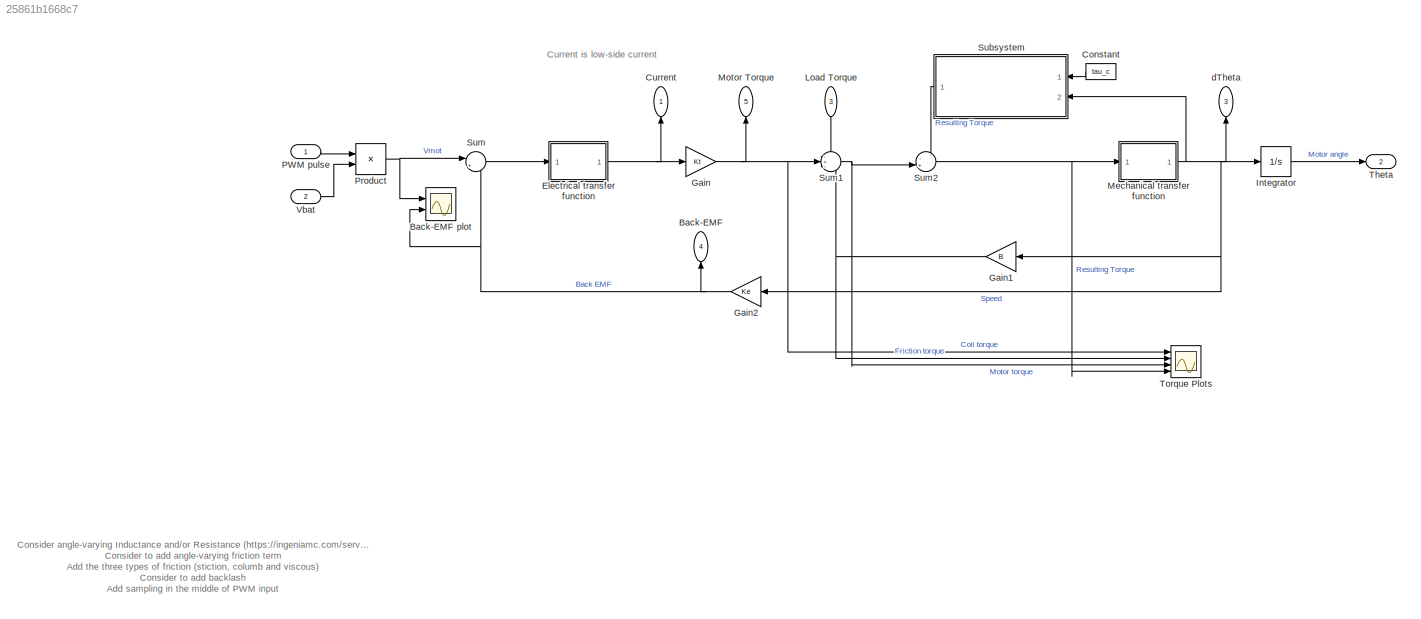
MODEL slx_25861b1668c7
KIND model
CONFIG AbsTol = auto
CONFIG EnableMultiTasking = off
CONFIG FixedStep = 1e-5
CONFIG InitFcn = Parameters_Model\nParameters_Simulation\nParameters_Controller
CONFIG MaxStep = auto
CONFIG MinStep = auto
CONFIG PreLoadFcn = modelDir = fileparts(get_param(bdroot, 'FileName'));\naddpath(fullfile(modelDir,'../../Parameters'));\n\nParameters_Model\nParameters_Simulation\nParameters_Controller
CONFIG RelTol = 1e-3
CONFIG SampleTimeConstraint = Unconstrained
CONFIG Solver = VariableStepAuto
CONFIG SolverName = VariableStepAuto
CONFIG StartTime = 0.0
CONFIG StopTime = 10.0
BLOCK [Outport] Back-EMF
  IconDisplay = Port number
  Port = 4
  VectorParamsAs1DForOutWhenUnconnected = off
BLOCK [Scope] Back-EMF plot
  Floating = off
  NumInputPorts = 2
  Ports = [2]
  ScopeSpecificationString = Simulink.scopes.TimeScopeBlockCfg('CurrentConfiguration', extmgr.ConfigurationSet(extmgr.Configuration('Core','General UI',true),extmgr.Configuration('Core','Source UI',true),extmgr.Configuration('Sources','WiredSimulink',true),extmgr.Configuration('Visuals','Time Domain',true,'SerializedDisplays',{struct('MinYLimReal','-15.00000','MaxYLimReal','15.00000','YLabelReal','','MinYLimMag','0.00000','Ma...<+2087ch>
BLOCK [Constant] Constant
  Value = tau_c
BLOCK [Outport] Current
  IconDisplay = Port number
  VectorParamsAs1DForOutWhenUnconnected = off
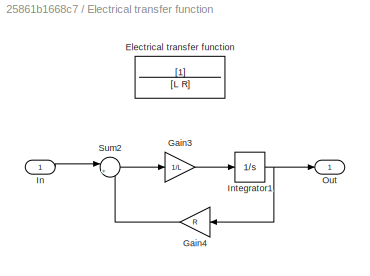
BLOCK [SubSystem] Electrical transfer function
  Ports = [1, 1]
  RequestExecContextInheritance = off
BLOCK [TransferFcn] Electrical transfer function/Electrical transfer function
  Denominator = [L R]
BLOCK [Gain] Electrical transfer function/Gain3
  Gain = 1/L
  OutDataTypeStr = Inherit: Inherit via internal rule
  ParamDataTypeStr = Inherit: Inherit via internal rule
  SaturateOnIntegerOverflow = off
BLOCK [Gain] Electrical transfer function/Gain4
  Gain = R
  OutDataTypeStr = Inherit: Inherit via internal rule
  ParamDataTypeStr = Inherit: Inherit via internal rule
  SaturateOnIntegerOverflow = off
BLOCK [Inport] Electrical transfer function/In
  IconDisplay = Port number
BLOCK [Integrator] Electrical transfer function/Integrator1
  InitialCondition = I0
  Ports = [1, 1]
BLOCK [Outport] Electrical transfer function/Out
  IconDisplay = Port number
  VectorParamsAs1DForOutWhenUnconnected = off
BLOCK [Sum] Electrical transfer function/Sum2
  IconShape = round
  InputSameDT = off
  Inputs = |+-
  OutDataTypeStr = Inherit: Inherit via internal rule
  Ports = [2, 1]
  SaturateOnIntegerOverflow = off
BLOCK [Gain] Gain
  Gain = Kt
  OutDataTypeStr = Inherit: Inherit via internal rule
  ParamDataTypeStr = Inherit: Inherit via internal rule
  SaturateOnIntegerOverflow = off
BLOCK [Gain] Gain1
  Gain = B
  OutDataTypeStr = Inherit: Inherit via internal rule
  ParamDataTypeStr = Inherit: Inherit via internal rule
  SaturateOnIntegerOverflow = off
BLOCK [Gain] Gain2
  Gain = Ke
  OutDataTypeStr = Inherit: Inherit via internal rule
  ParamDataTypeStr = Inherit: Inherit via internal rule
  SaturateOnIntegerOverflow = off
BLOCK [Integrator] Integrator
  InitialCondition = theta0
  Ports = [1, 1]
BLOCK [Inport] Load Torque
  IconDisplay = Port number
  OutDataTypeStr = double
  Port = 3
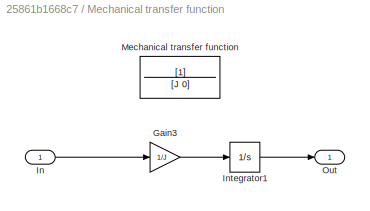
BLOCK [SubSystem] Mechanical transfer function
  Ports = [1, 1]
  RequestExecContextInheritance = off
BLOCK [Gain] Mechanical transfer function/Gain3
  Gain = 1/J
  OutDataTypeStr = Inherit: Inherit via internal rule
  ParamDataTypeStr = Inherit: Inherit via internal rule
  SaturateOnIntegerOverflow = off
BLOCK [Inport] Mechanical transfer function/In
  IconDisplay = Port number
BLOCK [Integrator] Mechanical transfer function/Integrator1
  InitialCondition = dTheta0
  Ports = [1, 1]
BLOCK [TransferFcn] Mechanical transfer function/Mechanical transfer function
  Denominator = [J 0]
BLOCK [Outport] Mechanical transfer function/Out
  IconDisplay = Port number
  VectorParamsAs1DForOutWhenUnconnected = off
BLOCK [Outport] Motor Torque
  IconDisplay = Port number
  Port = 5
  VectorParamsAs1DForOutWhenUnconnected = off
BLOCK [Inport] PWM pulse
  IconDisplay = Port number
  OutDataTypeStr = int8
BLOCK [Product] Product
  InputSameDT = off
  OutDataTypeStr = double
  Ports = [2, 1]
  RndMeth = Floor
  SaturateOnIntegerOverflow = off
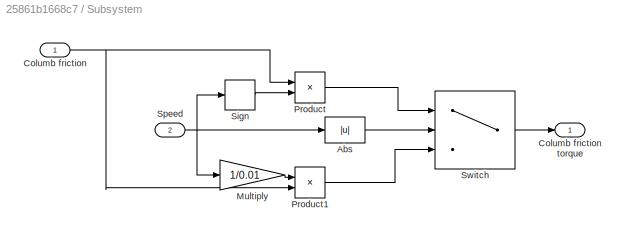
BLOCK [SubSystem] Subsystem
  Ports = [2, 1]
  RequestExecContextInheritance = off
BLOCK [Abs] Subsystem/Abs
  SaturateOnIntegerOverflow = off
BLOCK [Inport] Subsystem/Columb friction
  IconDisplay = Port number
BLOCK [Outport] Subsystem/Columb friction torque
  IconDisplay = Port number
  VectorParamsAs1DForOutWhenUnconnected = off
BLOCK [Gain] Subsystem/Multiply
  Gain = 1/0.01
  OutDataTypeStr = Inherit: Inherit via internal rule
  ParamDataTypeStr = Inherit: Inherit via internal rule
  SaturateOnIntegerOverflow = off
BLOCK [Product] Subsystem/Product
  InputSameDT = off
  OutDataTypeStr = Inherit: Inherit via internal rule
  Ports = [2, 1]
  RndMeth = Floor
  SaturateOnIntegerOverflow = off
BLOCK [Product] Subsystem/Product1
  InputSameDT = off
  OutDataTypeStr = Inherit: Inherit via internal rule
  Ports = [2, 1]
  RndMeth = Floor
  SaturateOnIntegerOverflow = off
BLOCK [Signum] Subsystem/Sign
BLOCK [Inport] Subsystem/Speed
  IconDisplay = Port number
  OutDataTypeStr = double
  Port = 2
BLOCK [Switch] Subsystem/Switch
  Criteria = u2 > Threshold
  InputSameDT = off
  SaturateOnIntegerOverflow = off
  Threshold = 0.01
BLOCK [Sum] Sum
  IconShape = round
  InputSameDT = off
  Inputs = |+-
  OutDataTypeStr = Inherit: Inherit via internal rule
  Ports = [2, 1]
  SaturateOnIntegerOverflow = off
BLOCK [Sum] Sum1
  IconShape = round
  InputSameDT = off
  Inputs = -+-
  OutDataTypeStr = Inherit: Inherit via internal rule
  Ports = [3, 1]
  SaturateOnIntegerOverflow = off
BLOCK [Sum] Sum2
  IconShape = round
  InputSameDT = off
  Inputs = -+|
  OutDataTypeStr = Inherit: Inherit via internal rule
  Ports = [2, 1]
  SaturateOnIntegerOverflow = off
BLOCK [Outport] Theta
  IconDisplay = Port number
  Port = 2
  VectorParamsAs1DForOutWhenUnconnected = off
BLOCK [Scope] Torque Plots
  Floating = off
  NumInputPorts = 4
  Ports = [4]
  ScopeSpecificationString = Simulink.scopes.TimeScopeBlockCfg('CurrentConfiguration', extmgr.ConfigurationSet(extmgr.Configuration('Core','General UI',true),extmgr.Configuration('Core','Source UI',true),extmgr.Configuration('Sources','WiredSimulink',true,'DataLoggingVariableName','ScopeData1'),extmgr.Configuration('Visuals','Time Domain',true,'SerializedDisplays',{struct('MinYLimReal','-0.04312','MaxYLimReal','-0.01808','YLa...<+2746ch>
BLOCK [Inport] Vbat
  IconDisplay = Port number
  OutDataTypeStr = double
  Port = 2
BLOCK [Outport] dTheta
  IconDisplay = Port number
  Port = 3
  VectorParamsAs1DForOutWhenUnconnected = off
ANNOTATION (root): Consider angle-varying Inductance and/or Resistance ( https://ingeniamc.com/servo-drives/basics/pwm-frequency-and-inductance-effects-on-motor-current-control ) Consider to add angle-varying friction term Add the three types of friction (stiction, columb and viscous) Consider to add backlash Add sampling in the middle of PWM input
ANNOTATION (root): Current is low-side current
LINE Constant:1 -> Subsystem:1
LINE Electrical transfer function/Gain3:1 -> Electrical transfer function/Integrator1:1
LINE Electrical transfer function/Gain4:1 -> Electrical transfer function/Sum2:2
LINE Electrical transfer function/In:1 -> Electrical transfer function/Sum2:1
NET Electrical transfer function/Integrator1:1 -> Electrical transfer function/Gain4:1, Electrical transfer function/Out:1
LINE Electrical transfer function/Sum2:1 -> Electrical transfer function/Gain3:1
NET Electrical transfer function:1 -> Current:1, Gain:1
NET Gain1:1 -> Sum1:3, Torque Plots:2
NET Gain2:1 -> Back-EMF plot:2, Back-EMF:1, Sum:2
NET Gain:1 -> Motor Torque:1, Sum1:2, Torque Plots:1
LINE Integrator:1 -> Theta:1
LINE Load Torque:1 -> Sum1:1
LINE Mechanical transfer function/Gain3:1 -> Mechanical transfer function/Integrator1:1
LINE Mechanical transfer function/In:1 -> Mechanical transfer function/Gain3:1
LINE Mechanical transfer function/Integrator1:1 -> Mechanical transfer function/Out:1
NET Mechanical transfer function:1 -> Gain1:1, Gain2:1, Integrator:1, Subsystem:2, dTheta:1
LINE PWM pulse:1 -> Product:1
NET Product:1 -> Back-EMF plot:1, Sum:1
LINE Subsystem/Abs:1 -> Subsystem/Switch:2
NET Subsystem/Columb friction:1 -> Subsystem/Product1:2, Subsystem/Product:1
LINE Subsystem/Multiply:1 -> Subsystem/Product1:1
LINE Subsystem/Product1:1 -> Subsystem/Switch:3
LINE Subsystem/Product:1 -> Subsystem/Switch:1
LINE Subsystem/Sign:1 -> Subsystem/Product:2
NET Subsystem/Speed:1 -> Subsystem/Abs:1, Subsystem/Multiply:1, Subsystem/Sign:1
LINE Subsystem/Switch:1 -> Subsystem/Columb friction torque:1
LINE Subsystem:1 -> Sum2:1
NET Sum1:1 -> Sum2:2, Torque Plots:3
NET Sum2:1 -> Mechanical transfer function:1, Torque Plots:4
LINE Sum:1 -> Electrical transfer function:1
LINE Vbat:1 -> Product:2
note: NET lines group one-source signal fan-out (src -> all destinations, sorted); 1:1 wires keep LINE
